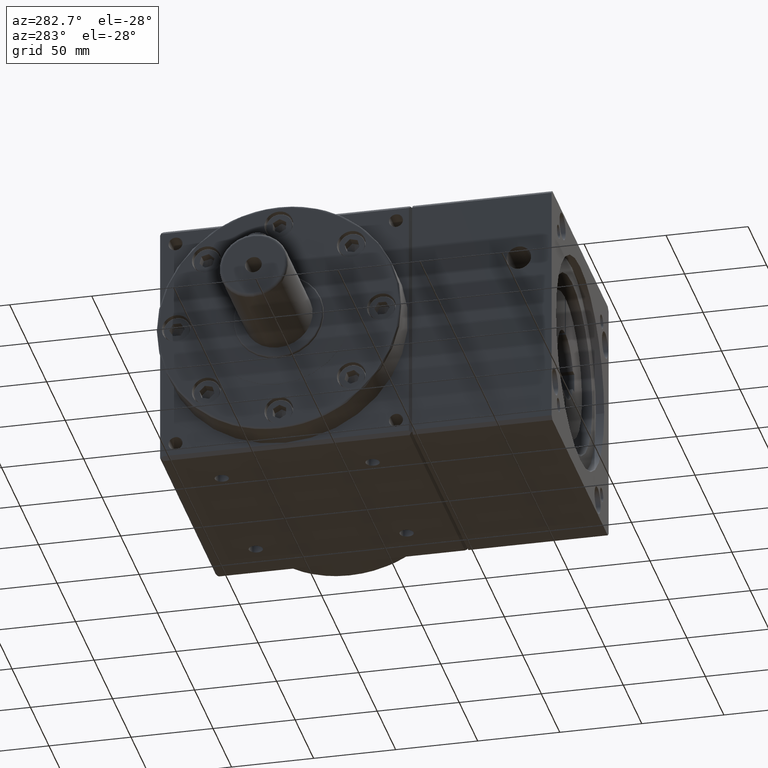
[diagram: clean part render]
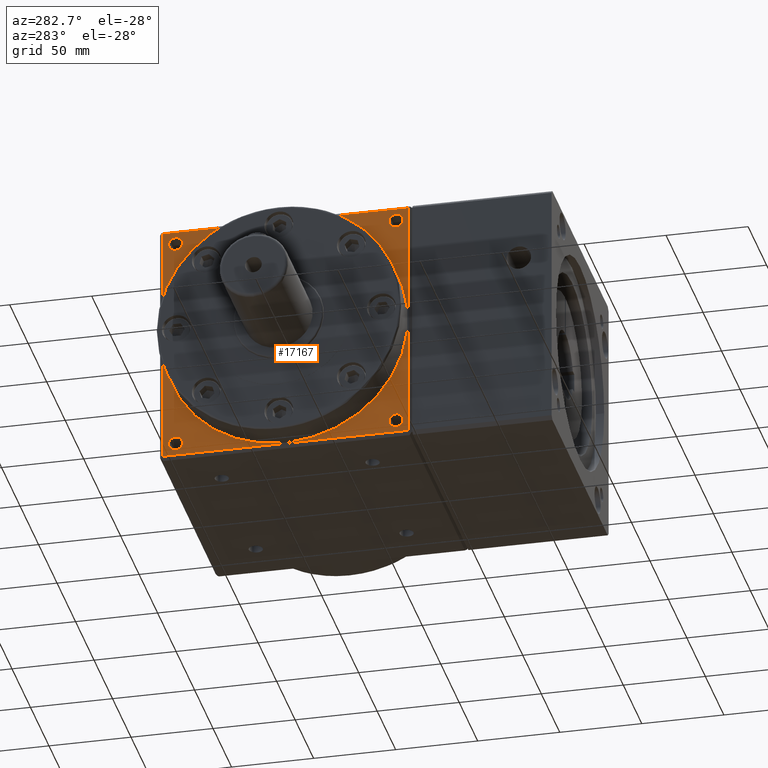
[diagram: same view with one face highlighted and labeled with its STEP entity id]
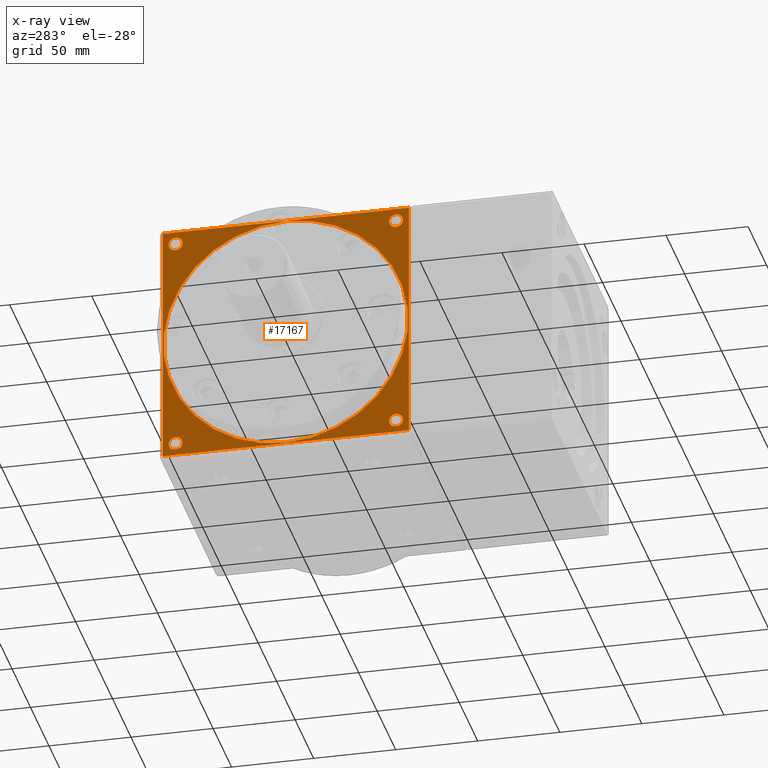
[diagram: x-ray of the same camera — body ghosted, the highlighted face saturated]
A machine part, auxiliary view. The second image highlights one B-rep face of the part: STEP entity #17167.
The next image is the same camera in x-ray: the body ghosted, the highlighted face saturated — about 0% of this face is hidden behind the body in this view.
In plain terms, the highlighted planar face has unit normal (1, 0, -0).
Its self-contained STEP definition (entity closure, byte-faithful):
#409 = DIRECTION ( 'NONE',  ( 0.0000000000000000000, 0.0000000000000000000, 1.000000000000000000 ) ) ;
#1141 = CIRCLE ( 'NONE', #1930, 4.250000000000003600 ) ;
#1293 = CARTESIAN_POINT ( 'NONE',  ( -76.99999999999992900, 349.1751442127218800, -67.17514421272213100 ) ) ;
#1482 = ORIENTED_EDGE ( 'NONE', *, *, #17177, .F. ) ;
#1654 = EDGE_LOOP ( 'NONE', ( #2218, #1482, #19613, #4571 ) ) ;
#1930 = AXIS2_PLACEMENT_3D ( 'NONE', #19015, #9822, #409 ) ;
#2128 = DIRECTION ( 'NONE',  ( -1.000000000000000000, -0.0000000000000000000, -0.0000000000000000000 ) ) ;
#2218 = ORIENTED_EDGE ( 'NONE', *, *, #17292, .F. ) ;
#2227 = AXIS2_PLACEMENT_3D ( 'NONE', #17525, #8309, #19036 ) ;
#2261 = CARTESIAN_POINT ( 'NONE',  ( -76.99999999999998600, 357.0000000000000000, 74.87162346309858700 ) ) ;
#2323 = AXIS2_PLACEMENT_3D ( 'NONE', #9298, #20011, #10833 ) ;
#2524 = VERTEX_POINT ( 'NONE', #3573 ) ;
#2705 = FACE_BOUND ( 'NONE', #13554, .T. ) ;
#2916 = DIRECTION ( 'NONE',  ( 0.0000000000000000000, 0.0000000000000000000, 1.000000000000000000 ) ) ;
#3150 = EDGE_LOOP ( 'NONE', ( #3322, #8522 ) ) ;
#3273 = EDGE_CURVE ( 'NONE', #17220, #13998, #14691, .T. ) ;
#3322 = ORIENTED_EDGE ( 'NONE', *, *, #11387, .F. ) ;
#3471 = AXIS2_PLACEMENT_3D ( 'NONE', #17897, #8672, #19396 ) ;
#3573 = CARTESIAN_POINT ( 'NONE',  ( -77.00000000000001400, 207.0000000000001400, 74.87162346309854400 ) ) ;
#3592 = ORIENTED_EDGE ( 'NONE', *, *, #7272, .F. ) ;
#3593 = VECTOR ( 'NONE', #6685, 1000.000000000000000 ) ;
#4098 = CARTESIAN_POINT ( 'NONE',  ( -76.99999999999992900, 349.1751442127221000, 62.92514421272196800 ) ) ;
#4571 = ORIENTED_EDGE ( 'NONE', *, *, #13517, .F. ) ;
#4843 = ORIENTED_EDGE ( 'NONE', *, *, #3273, .F. ) ;
#5072 = DIRECTION ( 'NONE',  ( -1.000000000000000000, -0.0000000000000000000, -0.0000000000000000000 ) ) ;
#5116 = DIRECTION ( 'NONE',  ( -1.000000000000000000, -0.0000000000000000000, -0.0000000000000000000 ) ) ;
#5140 = EDGE_CURVE ( 'NONE', #14307, #9114, #12459, .T. ) ;
#5196 = PLANE ( 'NONE',  #3471 ) ;
#5422 = CARTESIAN_POINT ( 'NONE',  ( -76.99999999999992900, 349.1751442127221000, 67.17514421272194600 ) ) ;
#6482 = DIRECTION ( 'NONE',  ( -1.000000000000000000, -0.0000000000000000000, -0.0000000000000000000 ) ) ;
#6685 = DIRECTION ( 'NONE',  ( 0.0000000000000000000, 1.000000000000000000, 0.0000000000000000000 ) ) ;
#6886 = CARTESIAN_POINT ( 'NONE',  ( -77.00000000000001400, 207.0000000000001400, -74.87162346309850100 ) ) ;
#6889 = CIRCLE ( 'NONE', #18825, 74.50000000000001400 ) ;
#6934 = FACE_BOUND ( 'NONE', #18448, .T. ) ;
#7003 = DIRECTION ( 'NONE',  ( 0.0000000000000000000, 0.0000000000000000000, 1.000000000000000000 ) ) ;
#7038 = ORIENTED_EDGE ( 'NONE', *, *, #10488, .F. ) ;
#7092 = ORIENTED_EDGE ( 'NONE', *, *, #10720, .F. ) ;
#7179 = AXIS2_PLACEMENT_3D ( 'NONE', #8208, #18950, #9748 ) ;
#7272 = EDGE_CURVE ( 'NONE', #8586, #18771, #18555, .T. ) ;
#7760 = LINE ( 'NONE', #9705, #3593 ) ;
#7868 = EDGE_CURVE ( 'NONE', #11191, #12506, #11324, .T. ) ;
#8208 = CARTESIAN_POINT ( 'NONE',  ( -76.99999999999992900, 349.1751442127218800, -67.17514421272213100 ) ) ;
#8309 = DIRECTION ( 'NONE',  ( -1.000000000000000000, -0.0000000000000000000, -0.0000000000000000000 ) ) ;
#8369 = LINE ( 'NONE', #16739, #16058 ) ;
#8522 = ORIENTED_EDGE ( 'NONE', *, *, #7868, .F. ) ;
#8586 = VERTEX_POINT ( 'NONE', #16436 ) ;
#8623 = AXIS2_PLACEMENT_3D ( 'NONE', #14270, #5072, #15856 ) ;
#8672 = DIRECTION ( 'NONE',  ( 1.000000000000000000, 9.011550524554844400E-017, -0.0000000000000000000 ) ) ;
#8918 = EDGE_CURVE ( 'NONE', #15520, #19043, #14632, .T. ) ;
#9094 = LINE ( 'NONE', #10217, #16793 ) ;
#9114 = VERTEX_POINT ( 'NONE', #10214 ) ;
#9203 = LINE ( 'NONE', #16451, #16903 ) ;
#9298 = CARTESIAN_POINT ( 'NONE',  ( -76.99999999999994300, 214.8248557872778700, -67.17514421272188900 ) ) ;
#9341 = CARTESIAN_POINT ( 'NONE',  ( -77.00000000000004300, 282.0000000000000000, 74.50000000000001400 ) ) ;
#9705 = CARTESIAN_POINT ( 'NONE',  ( -77.00000000000001400, 0.0000000000000000000, -74.87162346309850100 ) ) ;
#9748 = DIRECTION ( 'NONE',  ( 0.0000000000000000000, 0.0000000000000000000, 1.000000000000000000 ) ) ;
#9800 = CARTESIAN_POINT ( 'NONE',  ( -77.00000000000002800, 357.0000000000000000, -74.87162346309850100 ) ) ;
#9822 = DIRECTION ( 'NONE',  ( -1.000000000000000000, -0.0000000000000000000, -0.0000000000000000000 ) ) ;
#9946 = AXIS2_PLACEMENT_3D ( 'NONE', #1293, #12208, #2916 ) ;
#10214 = CARTESIAN_POINT ( 'NONE',  ( -76.99999999999994300, 214.8248557872778700, -62.92514421272188200 ) ) ;
#10217 = CARTESIAN_POINT ( 'NONE',  ( -77.00000000000004300, 357.0000000000000000, -107.4000000000000200 ) ) ;
#10229 = ORIENTED_EDGE ( 'NONE', *, *, #11089, .F. ) ;
#10488 = EDGE_CURVE ( 'NONE', #9114, #14307, #12386, .T. ) ;
#10494 = CARTESIAN_POINT ( 'NONE',  ( -77.00000000000004300, 282.0000000000000000, -74.50000000000001400 ) ) ;
#10720 = EDGE_CURVE ( 'NONE', #19043, #15520, #1141, .T. ) ;
#10828 = EDGE_CURVE ( 'NONE', #13998, #17220, #15269, .T. ) ;
#10833 = DIRECTION ( 'NONE',  ( 0.0000000000000000000, 0.0000000000000000000, 1.000000000000000000 ) ) ;
#11012 = FACE_BOUND ( 'NONE', #3150, .T. ) ;
#11089 = EDGE_CURVE ( 'NONE', #18771, #8586, #15808, .T. ) ;
#11191 = VERTEX_POINT ( 'NONE', #9341 ) ;
#11324 = CIRCLE ( 'NONE', #11536, 74.50000000000001400 ) ;
#11341 = AXIS2_PLACEMENT_3D ( 'NONE', #5422, #16210, #7003 ) ;
#11387 = EDGE_CURVE ( 'NONE', #12506, #11191, #6889, .T. ) ;
#11447 = VERTEX_POINT ( 'NONE', #2261 ) ;
#11473 = CARTESIAN_POINT ( 'NONE',  ( -77.00000000000004300, 282.0000000000000000, 0.0000000000000000000 ) ) ;
#11536 = AXIS2_PLACEMENT_3D ( 'NONE', #14317, #5116, #15906 ) ;
#11910 = EDGE_LOOP ( 'NONE', ( #7092, #17484 ) ) ;
#12208 = DIRECTION ( 'NONE',  ( -1.000000000000000000, -0.0000000000000000000, -0.0000000000000000000 ) ) ;
#12386 = CIRCLE ( 'NONE', #2323, 4.250000000000003600 ) ;
#12391 = AXIS2_PLACEMENT_3D ( 'NONE', #15691, #6482, #17255 ) ;
#12459 = CIRCLE ( 'NONE', #12391, 4.250000000000003600 ) ;
#12506 = VERTEX_POINT ( 'NONE', #10494 ) ;
#12828 = VERTEX_POINT ( 'NONE', #9800 ) ;
#12993 = DIRECTION ( 'NONE',  ( 0.0000000000000000000, 0.0000000000000000000, -1.000000000000000000 ) ) ;
#13517 = EDGE_CURVE ( 'NONE', #2524, #14755, #9203, .T. ) ;
#13554 = EDGE_LOOP ( 'NONE', ( #15842, #4843 ) ) ;
#13656 = CARTESIAN_POINT ( 'NONE',  ( -76.99999999999994300, 214.8248557872778700, -71.42514421272188900 ) ) ;
#13998 = VERTEX_POINT ( 'NONE', #19022 ) ;
#14270 = CARTESIAN_POINT ( 'NONE',  ( -76.99999999999994300, 214.8248557872781000, 67.17514421272218800 ) ) ;
#14307 = VERTEX_POINT ( 'NONE', #13656 ) ;
#14317 = CARTESIAN_POINT ( 'NONE',  ( -77.00000000000004300, 282.0000000000000000, 0.0000000000000000000 ) ) ;
#14412 = DIRECTION ( 'NONE',  ( 0.0000000000000000000, 0.0000000000000000000, 1.000000000000000000 ) ) ;
#14602 = FACE_OUTER_BOUND ( 'NONE', #1654, .T. ) ;
#14609 = CARTESIAN_POINT ( 'NONE',  ( -76.99999999999994300, 214.8248557872781000, 71.42514421272220200 ) ) ;
#14632 = CIRCLE ( 'NONE', #8623, 4.250000000000003600 ) ;
#14691 = CIRCLE ( 'NONE', #2227, 4.249999999999976000 ) ;
#14755 = VERTEX_POINT ( 'NONE', #6886 ) ;
#14759 = CARTESIAN_POINT ( 'NONE',  ( -76.99999999999994300, 214.8248557872781000, 62.92514421272218800 ) ) ;
#15015 = ORIENTED_EDGE ( 'NONE', *, *, #5140, .F. ) ;
#15088 = FACE_BOUND ( 'NONE', #19358, .T. ) ;
#15269 = CIRCLE ( 'NONE', #11341, 4.249999999999976000 ) ;
#15520 = VERTEX_POINT ( 'NONE', #14759 ) ;
#15691 = CARTESIAN_POINT ( 'NONE',  ( -76.99999999999994300, 214.8248557872778700, -67.17514421272188900 ) ) ;
#15808 = CIRCLE ( 'NONE', #9946, 4.249999999999976000 ) ;
#15842 = ORIENTED_EDGE ( 'NONE', *, *, #10828, .F. ) ;
#15856 = DIRECTION ( 'NONE',  ( 0.0000000000000000000, 0.0000000000000000000, 1.000000000000000000 ) ) ;
#15906 = DIRECTION ( 'NONE',  ( 0.0000000000000000000, 0.0000000000000000000, -1.000000000000000000 ) ) ;
#16058 = VECTOR ( 'NONE', #19785, 1000.000000000000000 ) ;
#16210 = DIRECTION ( 'NONE',  ( -1.000000000000000000, -0.0000000000000000000, -0.0000000000000000000 ) ) ;
#16436 = CARTESIAN_POINT ( 'NONE',  ( -76.99999999999992900, 349.1751442127218800, -71.42514421272211700 ) ) ;
#16451 = CARTESIAN_POINT ( 'NONE',  ( -77.00000000000002800, 207.0000000000001400, -107.4000000000000200 ) ) ;
#16739 = CARTESIAN_POINT ( 'NONE',  ( -76.99999999999995700, 0.0000000000000000000, 74.87162346309857200 ) ) ;
#16793 = VECTOR ( 'NONE', #14412, 1000.000000000000000 ) ;
#16903 = VECTOR ( 'NONE', #18002, 1000.000000000000000 ) ;
#17014 = CARTESIAN_POINT ( 'NONE',  ( -76.99999999999992900, 349.1751442127218800, -62.92514421272215900 ) ) ;
#17167 = ADVANCED_FACE ( 'NONE', ( #11012, #2705, #15088, #6934, #18706, #14602 ), #5196, .F. ) ;
#17177 = EDGE_CURVE ( 'NONE', #12828, #11447, #9094, .T. ) ;
#17220 = VERTEX_POINT ( 'NONE', #4098 ) ;
#17255 = DIRECTION ( 'NONE',  ( 0.0000000000000000000, 0.0000000000000000000, 1.000000000000000000 ) ) ;
#17292 = EDGE_CURVE ( 'NONE', #11447, #2524, #8369, .T. ) ;
#17484 = ORIENTED_EDGE ( 'NONE', *, *, #8918, .F. ) ;
#17525 = CARTESIAN_POINT ( 'NONE',  ( -76.99999999999992900, 349.1751442127221000, 67.17514421272194600 ) ) ;
#17689 = EDGE_CURVE ( 'NONE', #14755, #12828, #7760, .T. ) ;
#17897 = CARTESIAN_POINT ( 'NONE',  ( -77.00000000000004300, 359.0000000000000000, -107.4000000000000200 ) ) ;
#18002 = DIRECTION ( 'NONE',  ( -0.0000000000000000000, -0.0000000000000000000, -1.000000000000000000 ) ) ;
#18448 = EDGE_LOOP ( 'NONE', ( #7038, #15015 ) ) ;
#18555 = CIRCLE ( 'NONE', #7179, 4.249999999999976000 ) ;
#18706 = FACE_BOUND ( 'NONE', #11910, .T. ) ;
#18771 = VERTEX_POINT ( 'NONE', #17014 ) ;
#18825 = AXIS2_PLACEMENT_3D ( 'NONE', #11473, #2128, #12993 ) ;
#18950 = DIRECTION ( 'NONE',  ( -1.000000000000000000, -0.0000000000000000000, -0.0000000000000000000 ) ) ;
#19015 = CARTESIAN_POINT ( 'NONE',  ( -76.99999999999994300, 214.8248557872781000, 67.17514421272218800 ) ) ;
#19022 = CARTESIAN_POINT ( 'NONE',  ( -76.99999999999992900, 349.1751442127221000, 71.42514421272191800 ) ) ;
#19036 = DIRECTION ( 'NONE',  ( 0.0000000000000000000, 0.0000000000000000000, 1.000000000000000000 ) ) ;
#19043 = VERTEX_POINT ( 'NONE', #14609 ) ;
#19358 = EDGE_LOOP ( 'NONE', ( #10229, #3592 ) ) ;
#19396 = DIRECTION ( 'NONE',  ( -9.011550524554844400E-017, 1.000000000000000000, 0.0000000000000000000 ) ) ;
#19613 = ORIENTED_EDGE ( 'NONE', *, *, #17689, .F. ) ;
#19785 = DIRECTION ( 'NONE',  ( -0.0000000000000000000, -1.000000000000000000, -0.0000000000000000000 ) ) ;
#20011 = DIRECTION ( 'NONE',  ( -1.000000000000000000, -0.0000000000000000000, -0.0000000000000000000 ) ) ;